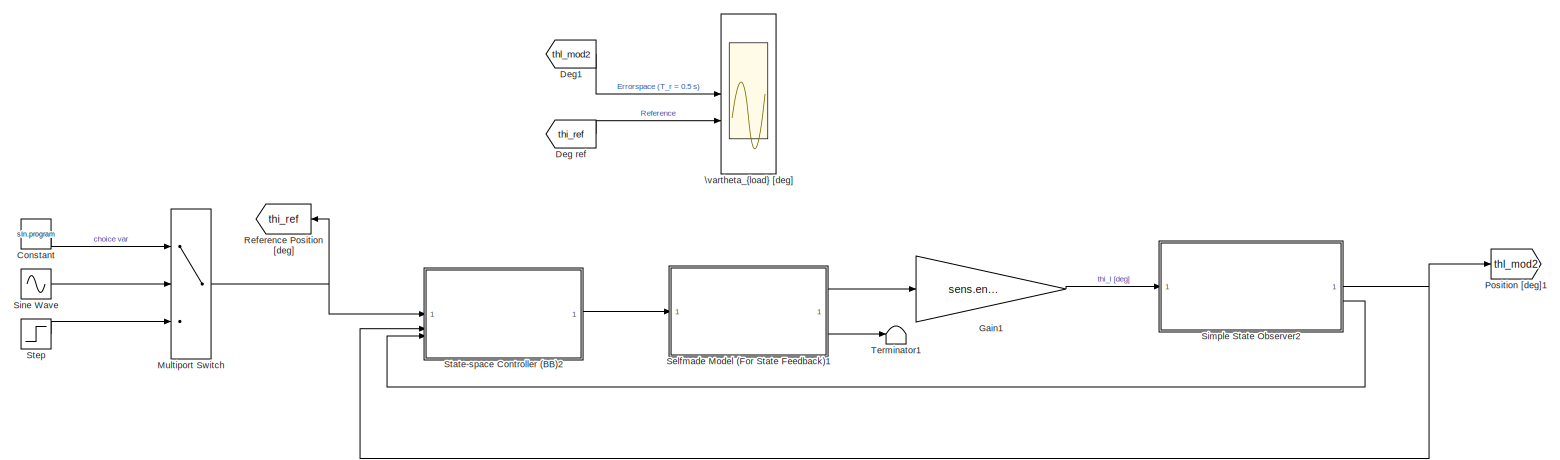
[diagram: root canvas - part 1/1, most of the canvas]
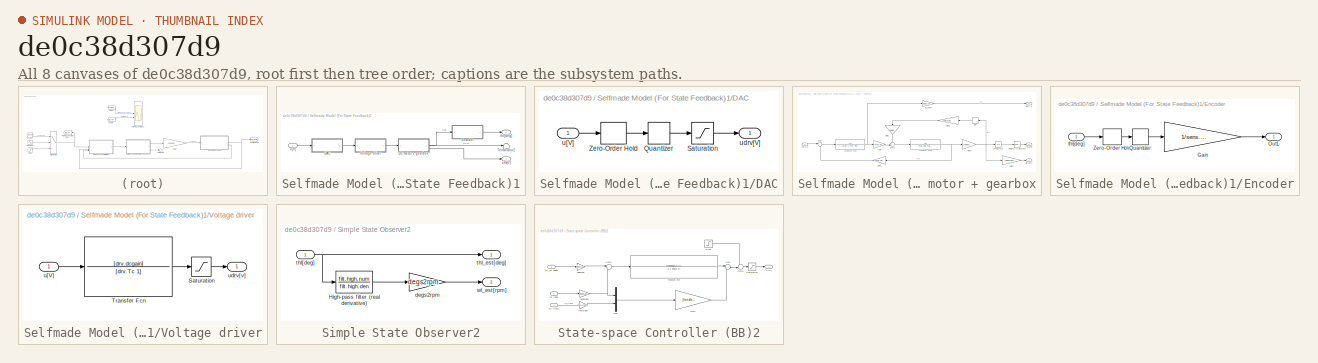
[diagram: thumbnail index - all 8 canvases of the model, root first then tree order]
MODEL slx_de0c38d307d9
KIND model
CONFIG AbsTol = auto
CONFIG EnableMultiTasking = off
CONFIG FixedStep = auto
CONFIG MaxStep = auto
CONFIG MinStep = auto
CONFIG RelTol = auto
CONFIG SampleTimeConstraint = Unconstrained
CONFIG SolverName = ode45
CONFIG StartTime = 0.0
CONFIG StopTime = sIn.simulation_time
BLOCK [Constant] Constant
  Value = sIn.program
BLOCK [From] Deg ref
  GotoTag = thi_ref
BLOCK [From] Deg1
  GotoTag = thl_mod2
BLOCK [Gain] Gain1
  Gain = sens.enc.pulse2deg
BLOCK [MultiPortSwitch] Multiport Switch
  InputSameDT = off
  Inputs = 2
  SaturateOnIntegerOverflow = off
BLOCK [Goto] Position [deg]1
  GotoTag = thl_mod2
BLOCK [Goto] Reference Position [deg]
  GotoTag = thi_ref
  NameLocation = top
BLOCK [SubSystem] Selfmade Model (For State Feedback)1
BLOCK [SubSystem] Selfmade Model (For State Feedback)1/DAC
BLOCK [Quantizer] Selfmade Model (For State Feedback)1/DAC/Quantizer
  QuantizationInterval = daq.dac.q
BLOCK [Saturate] Selfmade Model (For State Feedback)1/DAC/Saturation
  LowerLimit = -10
  UpperLimit = 10
BLOCK [ZeroOrderHold] Selfmade Model (For State Feedback)1/DAC/Zero-Order Hold
  SampleTime = 1e-3
BLOCK [Inport] Selfmade Model (For State Feedback)1/DAC/u[V]
BLOCK [Outport] Selfmade Model (For State Feedback)1/DAC/udrv[V]
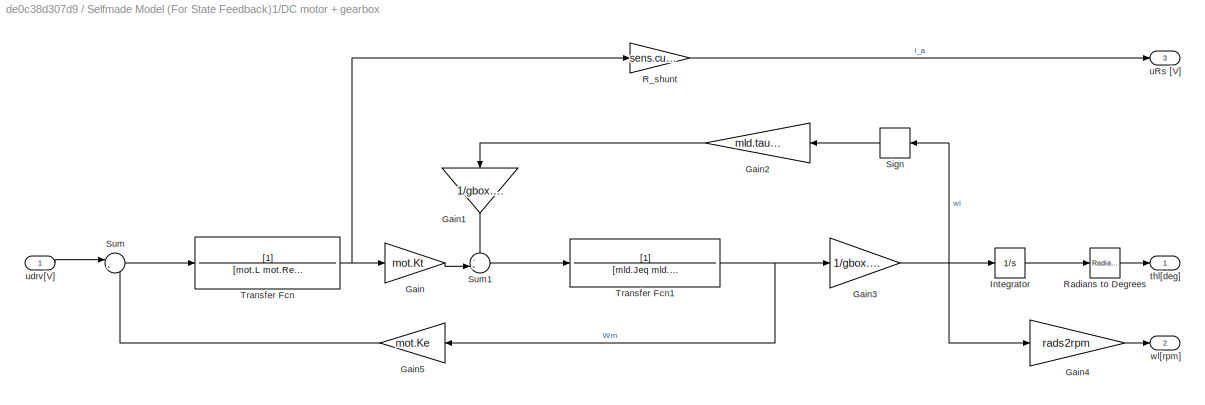
BLOCK [SubSystem] Selfmade Model (For State Feedback)1/DC motor + gearbox
BLOCK [Gain] Selfmade Model (For State Feedback)1/DC motor + gearbox/Gain
  Gain = mot.Kt
BLOCK [Gain] Selfmade Model (For State Feedback)1/DC motor + gearbox/Gain1
  Gain = 1/gbox.N1
  NameLocation = left
BLOCK [Gain] Selfmade Model (For State Feedback)1/DC motor + gearbox/Gain2
  Gain = mld.tausf
  NameLocation = top
BLOCK [Gain] Selfmade Model (For State Feedback)1/DC motor + gearbox/Gain3
  Gain = 1/gbox.N1
BLOCK [Gain] Selfmade Model (For State Feedback)1/DC motor + gearbox/Gain4
  Gain = rads2rpm
BLOCK [Gain] Selfmade Model (For State Feedback)1/DC motor + gearbox/Gain5
  Gain = mot.Ke
  NameLocation = top
BLOCK [Integrator] Selfmade Model (For State Feedback)1/DC motor + gearbox/Integrator
BLOCK [Gain] Selfmade Model (For State Feedback)1/DC motor + gearbox/R_shunt
  Gain = sens.curr.Rs
BLOCK [Reference] Selfmade Model (For State Feedback)1/DC motor + gearbox/Radians to Degrees  REF=simulink_extras/Transformations/Radians
to Degrees
  SourceBlock = simulink_extras/Transformations/Radians\nto Degrees
  SourceType = RadiansToDegrees
BLOCK [Signum] Selfmade Model (For State Feedback)1/DC motor + gearbox/Sign
  NameLocation = top
  ZeroCross = off
BLOCK [Sum] Selfmade Model (For State Feedback)1/DC motor + gearbox/Sum
  Inputs = |+-
BLOCK [Sum] Selfmade Model (For State Feedback)1/DC motor + gearbox/Sum1
  Inputs = -+|
BLOCK [TransferFcn] Selfmade Model (For State Feedback)1/DC motor + gearbox/Transfer Fcn
  Denominator = [mot.L mot.Req]
BLOCK [TransferFcn] Selfmade Model (For State Feedback)1/DC motor + gearbox/Transfer Fcn1
  Denominator = [mld.Jeq mld.Beq]
BLOCK [Outport] Selfmade Model (For State Feedback)1/DC motor + gearbox/thl[deg]
BLOCK [Outport] Selfmade Model (For State Feedback)1/DC motor + gearbox/uRs [V]
  Port = 3
BLOCK [Inport] Selfmade Model (For State Feedback)1/DC motor + gearbox/udrv[V]
BLOCK [Outport] Selfmade Model (For State Feedback)1/DC motor + gearbox/wl[rpm]
  Port = 2
BLOCK [SubSystem] Selfmade Model (For State Feedback)1/Encoder
  NameLocation = top
BLOCK [Gain] Selfmade Model (For State Feedback)1/Encoder/Gain
  Gain = 1/sens.enc.pulse2deg
BLOCK [Outport] Selfmade Model (For State Feedback)1/Encoder/Out1
BLOCK [Quantizer] Selfmade Model (For State Feedback)1/Encoder/Quantizer
  QuantizationInterval = sens.enc.pulse2deg
BLOCK [ZeroOrderHold] Selfmade Model (For State Feedback)1/Encoder/Zero-Order Hold
  SampleTime = 1e-3
BLOCK [Inport] Selfmade Model (For State Feedback)1/Encoder/thl[deg]
BLOCK [Terminator] Selfmade Model (For State Feedback)1/Terminator2
BLOCK [SubSystem] Selfmade Model (For State Feedback)1/Voltage driver
BLOCK [Saturate] Selfmade Model (For State Feedback)1/Voltage driver/Saturation
  LowerLimit = -12
  UpperLimit = 12
BLOCK [TransferFcn] Selfmade Model (For State Feedback)1/Voltage driver/Transfer Fcn
  Denominator = [drv.Tc 1]
  Numerator = [drv.dcgain]
BLOCK [Inport] Selfmade Model (For State Feedback)1/Voltage driver/u[V]
BLOCK [Outport] Selfmade Model (For State Feedback)1/Voltage driver/udrv[v]
BLOCK [Outport] Selfmade Model (For State Feedback)1/thl[deg]
BLOCK [Outport] Selfmade Model (For State Feedback)1/uRs[V]
  Port = 2
BLOCK [Inport] Selfmade Model (For State Feedback)1/u[V]
BLOCK [SubSystem] Simple State Observer2
BLOCK [TransferFcn] Simple State Observer2/High-pass filter (real derivative)
  Denominator = filt.high.den
  Numerator = filt.high.num
BLOCK [Gain] Simple State Observer2/degs2rpm
  Gain = degs2rpm
BLOCK [Inport] Simple State Observer2/thl[deg]
BLOCK [Outport] Simple State Observer2/thl_est[deg]
BLOCK [Outport] Simple State Observer2/wl_est[rpm]
  Port = 2
BLOCK [Sin] Sine Wave
  Amplitude = sIn.Amp
  Frequency = sIn.Freq
  SampleTime = 0
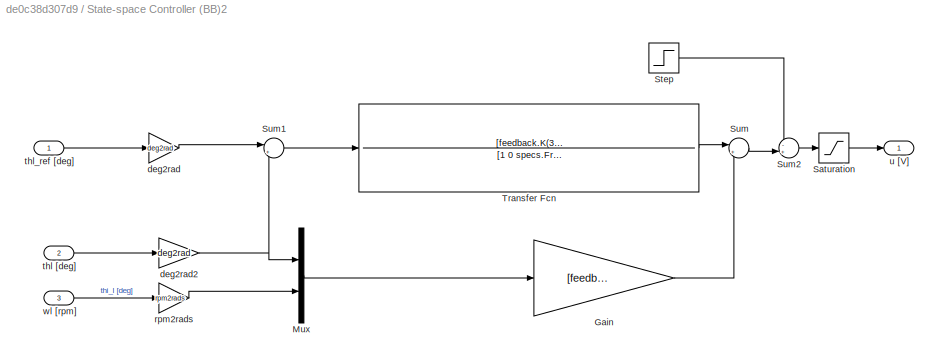
BLOCK [SubSystem] State-space Controller (BB)2
BLOCK [Gain] State-space Controller (BB)2/Gain
  Gain = [feedback.K(4) feedback.K(5)]
  Multiplication = Matrix(K*u)
BLOCK [Mux] State-space Controller (BB)2/Mux
  DisplayOption = bar
  Inputs = 2
BLOCK [Saturate] State-space Controller (BB)2/Saturation
  LowerLimit = -10
  UpperLimit = 10
BLOCK [Step] State-space Controller (BB)2/Step
  After = 40
  Commented = on
  SampleTime = 0
BLOCK [Sum] State-space Controller (BB)2/Sum
  Inputs = |+-
BLOCK [Sum] State-space Controller (BB)2/Sum1
  Inputs = |+-
BLOCK [Sum] State-space Controller (BB)2/Sum2
  Inputs = -+|
BLOCK [TransferFcn] State-space Controller (BB)2/Transfer Fcn
  Denominator = [1 0 specs.Freq^2 0]
  Numerator = [feedback.K(3),feedback.K(2),feedback.K(1)]
BLOCK [Gain] State-space Controller (BB)2/deg2rad
  Gain = deg2rad
BLOCK [Gain] State-space Controller (BB)2/deg2rad2
  Gain = deg2rad
BLOCK [Gain] State-space Controller (BB)2/rpm2rads
  Gain = rpm2rads
BLOCK [Inport] State-space Controller (BB)2/thl [deg]
  Port = 2
BLOCK [Inport] State-space Controller (BB)2/thl_ref [deg]
BLOCK [Outport] State-space Controller (BB)2/u [V]
BLOCK [Inport] State-space Controller (BB)2/wl [rpm]
  Port = 3
BLOCK [Step] Step
  After = sIn.Amp
  SampleTime = 0
  Time = 0
BLOCK [Terminator] Terminator1
BLOCK [Scope] \vartheta_{load} [deg]
  Floating = off
  NumInputPorts = 2
  ScopeSpecificationString = Simulink.scopes.TimeScopeBlockCfg('CurrentConfiguration', extmgr.ConfigurationSet(extmgr.Configuration('Core','General UI',true),extmgr.Configuration('Core','Source UI',true),extmgr.Configuration('Sources','WiredSimulink',true,'DataLoggingVariableName','theta40_step','DataLogging',true,'DataLoggingSaveFormat','StructureWithTime'),extmgr.Configuration('Visuals','Time Domain',true,'SerializedDisplay...<+1735ch>
LINE Constant:1 -> Multiport Switch:1
LINE Deg ref:1 -> \vartheta_{load} [deg]:2
LINE Deg1:1 -> \vartheta_{load} [deg]:1
LINE Gain1:1 -> Simple State Observer2:1
NET Multiport Switch:1 -> Reference Position [deg]:1, State-space Controller (BB)2:1
LINE Selfmade Model (For State Feedback)1/DAC/Quantizer:1 -> Selfmade Model (For State Feedback)1/DAC/Saturation:1
LINE Selfmade Model (For State Feedback)1/DAC/Saturation:1 -> Selfmade Model (For State Feedback)1/DAC/udrv[V]:1
LINE Selfmade Model (For State Feedback)1/DAC/Zero-Order Hold:1 -> Selfmade Model (For State Feedback)1/DAC/Quantizer:1
LINE Selfmade Model (For State Feedback)1/DAC/u[V]:1 -> Selfmade Model (For State Feedback)1/DAC/Zero-Order Hold:1
LINE Selfmade Model (For State Feedback)1/DAC:1 -> Selfmade Model (For State Feedback)1/Voltage driver:1
LINE Selfmade Model (For State Feedback)1/DC motor + gearbox/Gain1:1 -> Selfmade Model (For State Feedback)1/DC motor + gearbox/Sum1:1
LINE Selfmade Model (For State Feedback)1/DC motor + gearbox/Gain2:1 -> Selfmade Model (For State Feedback)1/DC motor + gearbox/Gain1:1
NET Selfmade Model (For State Feedback)1/DC motor + gearbox/Gain3:1 -> Selfmade Model (For State Feedback)1/DC motor + gearbox/Gain4:1, Selfmade Model (For State Feedback)1/DC motor + gearbox/Integrator:1, Selfmade Model (For State Feedback)1/DC motor + gearbox/Sign:1
LINE Selfmade Model (For State Feedback)1/DC motor + gearbox/Gain4:1 -> Selfmade Model (For State Feedback)1/DC motor + gearbox/wl[rpm]:1
LINE Selfmade Model (For State Feedback)1/DC motor + gearbox/Gain5:1 -> Selfmade Model (For State Feedback)1/DC motor + gearbox/Sum:2
LINE Selfmade Model (For State Feedback)1/DC motor + gearbox/Gain:1 -> Selfmade Model (For State Feedback)1/DC motor + gearbox/Sum1:2
LINE Selfmade Model (For State Feedback)1/DC motor + gearbox/Integrator:1 -> Selfmade Model (For State Feedback)1/DC motor + gearbox/Radians to Degrees:1
LINE Selfmade Model (For State Feedback)1/DC motor + gearbox/R_shunt:1 -> Selfmade Model (For State Feedback)1/DC motor + gearbox/uRs [V]:1
LINE Selfmade Model (For State Feedback)1/DC motor + gearbox/Radians to Degrees:1 -> Selfmade Model (For State Feedback)1/DC motor + gearbox/thl[deg]:1
LINE Selfmade Model (For State Feedback)1/DC motor + gearbox/Sign:1 -> Selfmade Model (For State Feedback)1/DC motor + gearbox/Gain2:1
LINE Selfmade Model (For State Feedback)1/DC motor + gearbox/Sum1:1 -> Selfmade Model (For State Feedback)1/DC motor + gearbox/Transfer Fcn1:1
LINE Selfmade Model (For State Feedback)1/DC motor + gearbox/Sum:1 -> Selfmade Model (For State Feedback)1/DC motor + gearbox/Transfer Fcn:1
NET Selfmade Model (For State Feedback)1/DC motor + gearbox/Transfer Fcn1:1 -> Selfmade Model (For State Feedback)1/DC motor + gearbox/Gain3:1, Selfmade Model (For State Feedback)1/DC motor + gearbox/Gain5:1
NET Selfmade Model (For State Feedback)1/DC motor + gearbox/Transfer Fcn:1 -> Selfmade Model (For State Feedback)1/DC motor + gearbox/Gain:1, Selfmade Model (For State Feedback)1/DC motor + gearbox/R_shunt:1
LINE Selfmade Model (For State Feedback)1/DC motor + gearbox/udrv[V]:1 -> Selfmade Model (For State Feedback)1/DC motor + gearbox/Sum:1
LINE Selfmade Model (For State Feedback)1/DC motor + gearbox:1 -> Selfmade Model (For State Feedback)1/Encoder:1
LINE Selfmade Model (For State Feedback)1/DC motor + gearbox:2 -> Selfmade Model (For State Feedback)1/Terminator2:1
LINE Selfmade Model (For State Feedback)1/DC motor + gearbox:3 -> Selfmade Model (For State Feedback)1/uRs[V]:1
LINE Selfmade Model (For State Feedback)1/Encoder/Gain:1 -> Selfmade Model (For State Feedback)1/Encoder/Out1:1
LINE Selfmade Model (For State Feedback)1/Encoder/Quantizer:1 -> Selfmade Model (For State Feedback)1/Encoder/Gain:1
LINE Selfmade Model (For State Feedback)1/Encoder/Zero-Order Hold:1 -> Selfmade Model (For State Feedback)1/Encoder/Quantizer:1
LINE Selfmade Model (For State Feedback)1/Encoder/thl[deg]:1 -> Selfmade Model (For State Feedback)1/Encoder/Zero-Order Hold:1
LINE Selfmade Model (For State Feedback)1/Encoder:1 -> Selfmade Model (For State Feedback)1/thl[deg]:1
LINE Selfmade Model (For State Feedback)1/Voltage driver/Saturation:1 -> Selfmade Model (For State Feedback)1/Voltage driver/udrv[v]:1
LINE Selfmade Model (For State Feedback)1/Voltage driver/Transfer Fcn:1 -> Selfmade Model (For State Feedback)1/Voltage driver/Saturation:1
LINE Selfmade Model (For State Feedback)1/Voltage driver/u[V]:1 -> Selfmade Model (For State Feedback)1/Voltage driver/Transfer Fcn:1
LINE Selfmade Model (For State Feedback)1/Voltage driver:1 -> Selfmade Model (For State Feedback)1/DC motor + gearbox:1
LINE Selfmade Model (For State Feedback)1/u[V]:1 -> Selfmade Model (For State Feedback)1/DAC:1
LINE Selfmade Model (For State Feedback)1:1 -> Gain1:1
LINE Selfmade Model (For State Feedback)1:2 -> Terminator1:1
LINE Simple State Observer2/High-pass filter (real derivative):1 -> Simple State Observer2/degs2rpm:1
LINE Simple State Observer2/degs2rpm:1 -> Simple State Observer2/wl_est[rpm]:1
NET Simple State Observer2/thl[deg]:1 -> Simple State Observer2/High-pass filter (real derivative):1, Simple State Observer2/thl_est[deg]:1
NET Simple State Observer2:1 -> Position [deg]1:1, State-space Controller (BB)2:2
LINE Simple State Observer2:2 -> State-space Controller (BB)2:3
LINE Sine Wave:1 -> Multiport Switch:2
LINE State-space Controller (BB)2/Gain:1 -> State-space Controller (BB)2/Sum:2
LINE State-space Controller (BB)2/Mux:1 -> State-space Controller (BB)2/Gain:1
LINE State-space Controller (BB)2/Saturation:1 -> State-space Controller (BB)2/u [V]:1
LINE State-space Controller (BB)2/Step:1 -> State-space Controller (BB)2/Sum2:1
LINE State-space Controller (BB)2/Sum1:1 -> State-space Controller (BB)2/Transfer Fcn:1
LINE State-space Controller (BB)2/Sum2:1 -> State-space Controller (BB)2/Saturation:1
LINE State-space Controller (BB)2/Sum:1 -> State-space Controller (BB)2/Sum2:2
LINE State-space Controller (BB)2/Transfer Fcn:1 -> State-space Controller (BB)2/Sum:1
NET State-space Controller (BB)2/deg2rad2:1 -> State-space Controller (BB)2/Mux:1, State-space Controller (BB)2/Sum1:2
LINE State-space Controller (BB)2/deg2rad:1 -> State-space Controller (BB)2/Sum1:1
LINE State-space Controller (BB)2/rpm2rads:1 -> State-space Controller (BB)2/Mux:2
LINE State-space Controller (BB)2/thl [deg]:1 -> State-space Controller (BB)2/deg2rad2:1
LINE State-space Controller (BB)2/thl_ref [deg]:1 -> State-space Controller (BB)2/deg2rad:1
LINE State-space Controller (BB)2/wl [rpm]:1 -> State-space Controller (BB)2/rpm2rads:1
LINE State-space Controller (BB)2:1 -> Selfmade Model (For State Feedback)1:1
LINE Step:1 -> Multiport Switch:3
note: NET lines group one-source signal fan-out (src -> all destinations, sorted); 1:1 wires keep LINE
